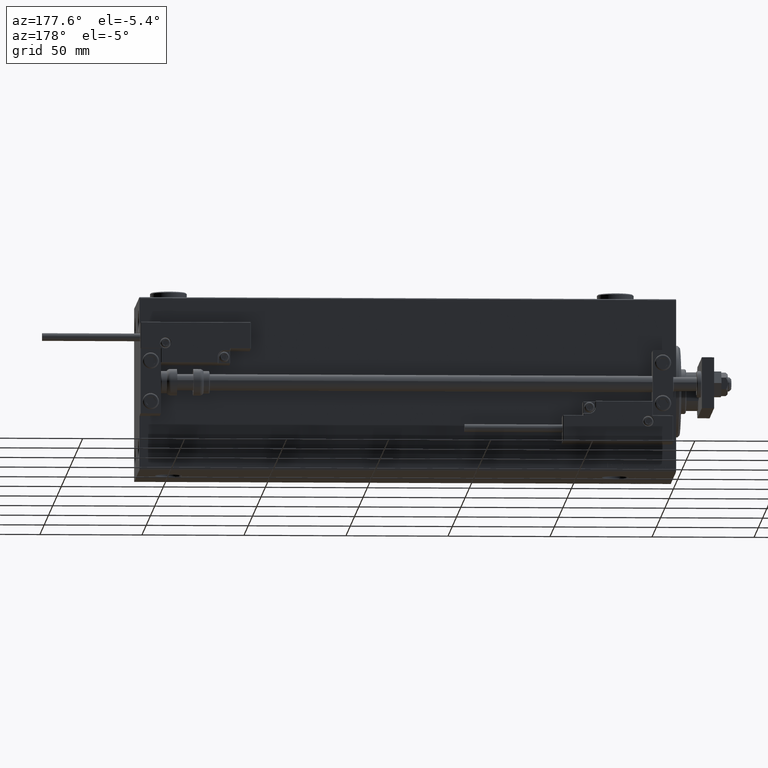
[diagram: clean part render]
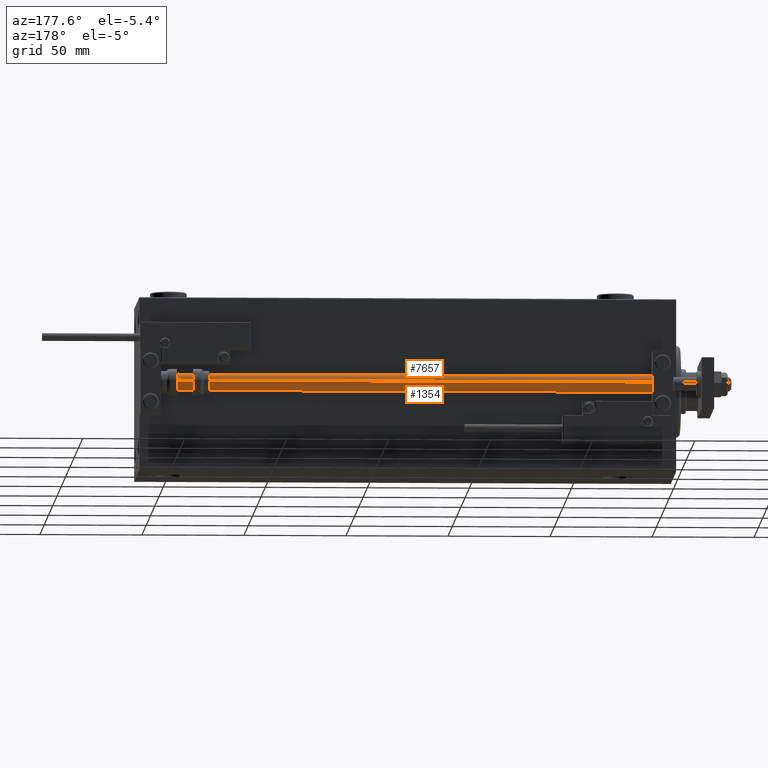
[diagram: same view with one multi-face feature highlighted, each face labeled with its STEP entity id]
A machine part, auxiliary view. The highlighted faces form ONE feature: a constant-radius fillet chain: 2 tangent blend faces with common blend radius 4 mm. The faces share edges in the B-rep.
Their STEP definitions:
[1] entity #7657 (Cylinder):
#1269 = VERTEX_POINT ( 'NONE', #35927 ) ;
#2988 = CARTESIAN_POINT ( 'NONE',  ( -4.000000000000000000, 0.000000000000000000, 263.0000000000000000 ) ) ;
#5175 = CARTESIAN_POINT ( 'NONE',  ( 4.000000000000000000, 4.898587196589412829E-16, 263.0000000000000000 ) ) ;
#7537 = CARTESIAN_POINT ( 'NONE',  ( 0.000000000000000000, 0.000000000000000000, 263.0000000000000000 ) ) ;
#7657 = ADVANCED_FACE ( 'NONE', ( #15495 ), #39700, .T. ) ;
#8273 = ORIENTED_EDGE ( 'NONE', *, *, #24244, .T. ) ;
#8573 = EDGE_LOOP ( 'NONE', ( #36318, #8273, #14850, #42425 ) ) ;
#9585 = DIRECTION ( 'NONE',  ( -0.000000000000000000, -0.000000000000000000, -1.000000000000000000 ) ) ;
#13367 = CIRCLE ( 'NONE', #50732, 4.000000000000000000 ) ;
#13557 = LINE ( 'NONE', #29766, #22632 ) ;
#14168 = CIRCLE ( 'NONE', #42196, 4.000000000000000000 ) ;
#14850 = ORIENTED_EDGE ( 'NONE', *, *, #51593, .T. ) ;
#15495 = FACE_OUTER_BOUND ( 'NONE', #8573, .T. ) ;
#16507 = EDGE_CURVE ( 'NONE', #44279, #17473, #47895, .T. ) ;
#17473 = VERTEX_POINT ( 'NONE', #32964 ) ;
#18177 = CARTESIAN_POINT ( 'NONE',  ( 0.000000000000000000, 0.000000000000000000, 2.000000000000057288 ) ) ;
#18975 = DIRECTION ( 'NONE',  ( -1.000000000000000000, 0.000000000000000000, 0.000000000000000000 ) ) ;
#19191 = DIRECTION ( 'NONE',  ( 0.000000000000000000, 0.000000000000000000, 1.000000000000000000 ) ) ;
#22127 = AXIS2_PLACEMENT_3D ( 'NONE', #7537, #27207, #18975 ) ;
#22632 = VECTOR ( 'NONE', #9585, 1000.000000000000000 ) ;
#23171 = VECTOR ( 'NONE', #31404, 1000.000000000000000 ) ;
#23438 = DIRECTION ( 'NONE',  ( 1.000000000000000000, 0.000000000000000000, 0.000000000000000000 ) ) ;
#24244 = EDGE_CURVE ( 'NONE', #52422, #1269, #13557, .T. ) ;
#26929 = DIRECTION ( 'NONE',  ( -0.000000000000000000, -0.000000000000000000, 1.000000000000000000 ) ) ;
#27207 = DIRECTION ( 'NONE',  ( -0.000000000000000000, -0.000000000000000000, -1.000000000000000000 ) ) ;
#29061 = EDGE_CURVE ( 'NONE', #52422, #44279, #14168, .T. ) ;
#29766 = CARTESIAN_POINT ( 'NONE',  ( 4.000000000000000000, 4.898587196589412829E-16, 263.0000000000000000 ) ) ;
#31404 = DIRECTION ( 'NONE',  ( -0.000000000000000000, -0.000000000000000000, -1.000000000000000000 ) ) ;
#31916 = CARTESIAN_POINT ( 'NONE',  ( 0.000000000000000000, 0.000000000000000000, 263.0000000000000000 ) ) ;
#32964 = CARTESIAN_POINT ( 'NONE',  ( -4.000000000000000000, 0.000000000000000000, 2.000000000000057288 ) ) ;
#35927 = CARTESIAN_POINT ( 'NONE',  ( 4.000000000000000000, 4.898587196589412829E-16, 2.000000000000057288 ) ) ;
#36318 = ORIENTED_EDGE ( 'NONE', *, *, #29061, .F. ) ;
#39700 = CYLINDRICAL_SURFACE ( 'NONE', #22127, 4.000000000000000000 ) ;
#40705 = CARTESIAN_POINT ( 'NONE',  ( -4.000000000000000000, 0.000000000000000000, 263.0000000000000000 ) ) ;
#42196 = AXIS2_PLACEMENT_3D ( 'NONE', #31916, #19191, #23438 ) ;
#42425 = ORIENTED_EDGE ( 'NONE', *, *, #16507, .F. ) ;
#44279 = VERTEX_POINT ( 'NONE', #40705 ) ;
#47895 = LINE ( 'NONE', #2988, #23171 ) ;
#50732 = AXIS2_PLACEMENT_3D ( 'NONE', #18177, #26929, #51657 ) ;
#51593 = EDGE_CURVE ( 'NONE', #1269, #17473, #13367, .T. ) ;
#51657 = DIRECTION ( 'NONE',  ( 1.000000000000000000, 0.000000000000000000, 0.000000000000000000 ) ) ;
#52422 = VERTEX_POINT ( 'NONE', #5175 ) ;
[2] entity #1354 (Cylinder):
#1269 = VERTEX_POINT ( 'NONE', #35927 ) ;
#1354 = ADVANCED_FACE ( 'NONE', ( #17574 ), #37492, .T. ) ;
#2645 = ORIENTED_EDGE ( 'NONE', *, *, #24244, .F. ) ;
#2988 = CARTESIAN_POINT ( 'NONE',  ( -4.000000000000000000, 0.000000000000000000, 263.0000000000000000 ) ) ;
#4380 = DIRECTION ( 'NONE',  ( 1.000000000000000000, 0.000000000000000000, 0.000000000000000000 ) ) ;
#5175 = CARTESIAN_POINT ( 'NONE',  ( 4.000000000000000000, 4.898587196589412829E-16, 263.0000000000000000 ) ) ;
#6713 = AXIS2_PLACEMENT_3D ( 'NONE', #17836, #17307, #41787 ) ;
#9585 = DIRECTION ( 'NONE',  ( -0.000000000000000000, -0.000000000000000000, -1.000000000000000000 ) ) ;
#13557 = LINE ( 'NONE', #29766, #22632 ) ;
#14176 = EDGE_CURVE ( 'NONE', #44279, #52422, #42659, .T. ) ;
#16507 = EDGE_CURVE ( 'NONE', #44279, #17473, #47895, .T. ) ;
#17307 = DIRECTION ( 'NONE',  ( -0.000000000000000000, -0.000000000000000000, -1.000000000000000000 ) ) ;
#17473 = VERTEX_POINT ( 'NONE', #32964 ) ;
#17574 = FACE_OUTER_BOUND ( 'NONE', #45978, .T. ) ;
#17836 = CARTESIAN_POINT ( 'NONE',  ( 0.000000000000000000, 0.000000000000000000, 263.0000000000000000 ) ) ;
#19523 = EDGE_CURVE ( 'NONE', #17473, #1269, #51339, .T. ) ;
#22632 = VECTOR ( 'NONE', #9585, 1000.000000000000000 ) ;
#23171 = VECTOR ( 'NONE', #31404, 1000.000000000000000 ) ;
#24244 = EDGE_CURVE ( 'NONE', #52422, #1269, #13557, .T. ) ;
#24612 = ORIENTED_EDGE ( 'NONE', *, *, #14176, .F. ) ;
#25939 = ORIENTED_EDGE ( 'NONE', *, *, #19523, .T. ) ;
#29766 = CARTESIAN_POINT ( 'NONE',  ( 4.000000000000000000, 4.898587196589412829E-16, 263.0000000000000000 ) ) ;
#29945 = CARTESIAN_POINT ( 'NONE',  ( 0.000000000000000000, 0.000000000000000000, 263.0000000000000000 ) ) ;
#31404 = DIRECTION ( 'NONE',  ( -0.000000000000000000, -0.000000000000000000, -1.000000000000000000 ) ) ;
#31753 = DIRECTION ( 'NONE',  ( -0.000000000000000000, -0.000000000000000000, 1.000000000000000000 ) ) ;
#32964 = CARTESIAN_POINT ( 'NONE',  ( -4.000000000000000000, 0.000000000000000000, 2.000000000000057288 ) ) ;
#33932 = DIRECTION ( 'NONE',  ( 1.000000000000000000, 0.000000000000000000, 0.000000000000000000 ) ) ;
#34193 = DIRECTION ( 'NONE',  ( 0.000000000000000000, 0.000000000000000000, 1.000000000000000000 ) ) ;
#35927 = CARTESIAN_POINT ( 'NONE',  ( 4.000000000000000000, 4.898587196589412829E-16, 2.000000000000057288 ) ) ;
#37492 = CYLINDRICAL_SURFACE ( 'NONE', #6713, 4.000000000000000000 ) ;
#38029 = ORIENTED_EDGE ( 'NONE', *, *, #16507, .T. ) ;
#39226 = AXIS2_PLACEMENT_3D ( 'NONE', #29945, #34193, #33932 ) ;
#40283 = AXIS2_PLACEMENT_3D ( 'NONE', #40531, #31753, #4380 ) ;
#40531 = CARTESIAN_POINT ( 'NONE',  ( 0.000000000000000000, 0.000000000000000000, 2.000000000000057288 ) ) ;
#40705 = CARTESIAN_POINT ( 'NONE',  ( -4.000000000000000000, 0.000000000000000000, 263.0000000000000000 ) ) ;
#41787 = DIRECTION ( 'NONE',  ( -1.000000000000000000, 0.000000000000000000, 0.000000000000000000 ) ) ;
#42659 = CIRCLE ( 'NONE', #39226, 4.000000000000000000 ) ;
#44279 = VERTEX_POINT ( 'NONE', #40705 ) ;
#45978 = EDGE_LOOP ( 'NONE', ( #2645, #24612, #38029, #25939 ) ) ;
#47895 = LINE ( 'NONE', #2988, #23171 ) ;
#51339 = CIRCLE ( 'NONE', #40283, 4.000000000000000000 ) ;
#52422 = VERTEX_POINT ( 'NONE', #5175 ) ;